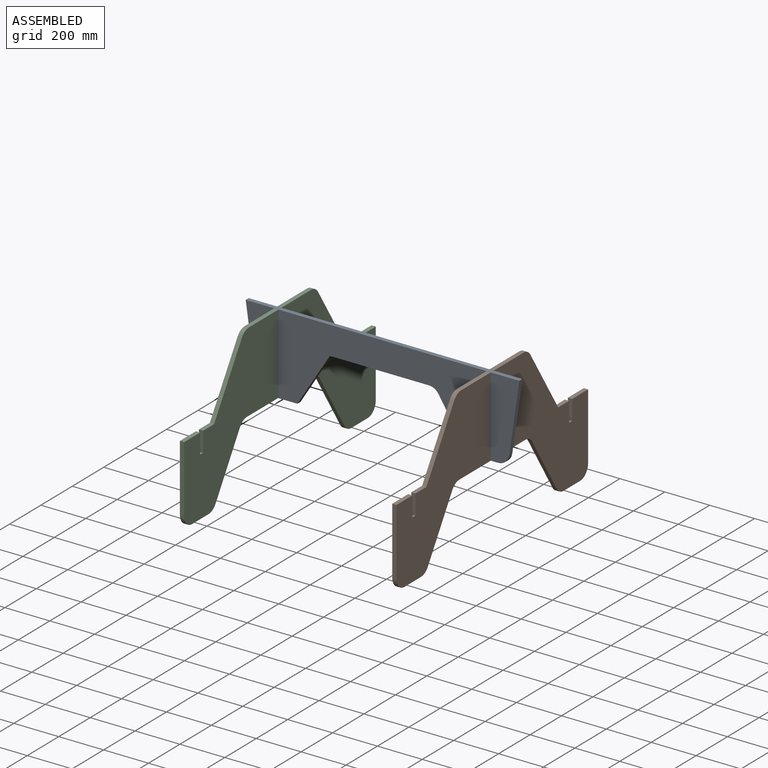
[diagram: assembled view]
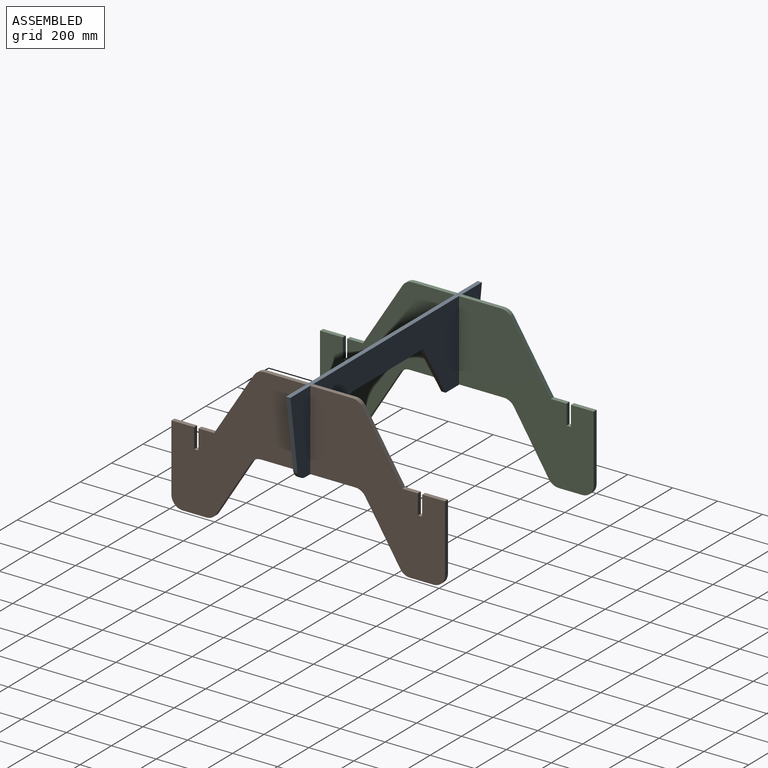
[diagram: assembled view, second angle]
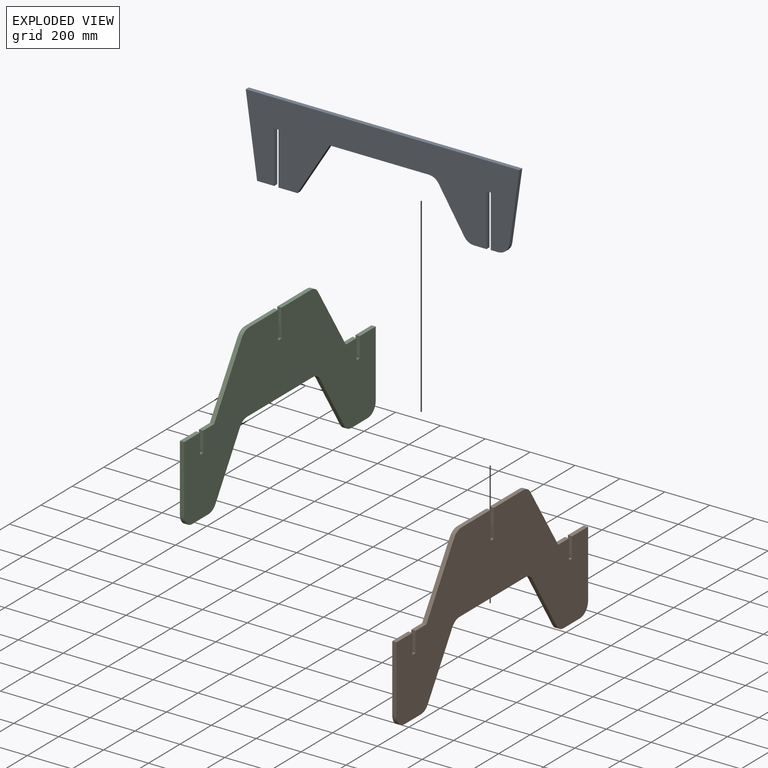
[diagram: exploded view]
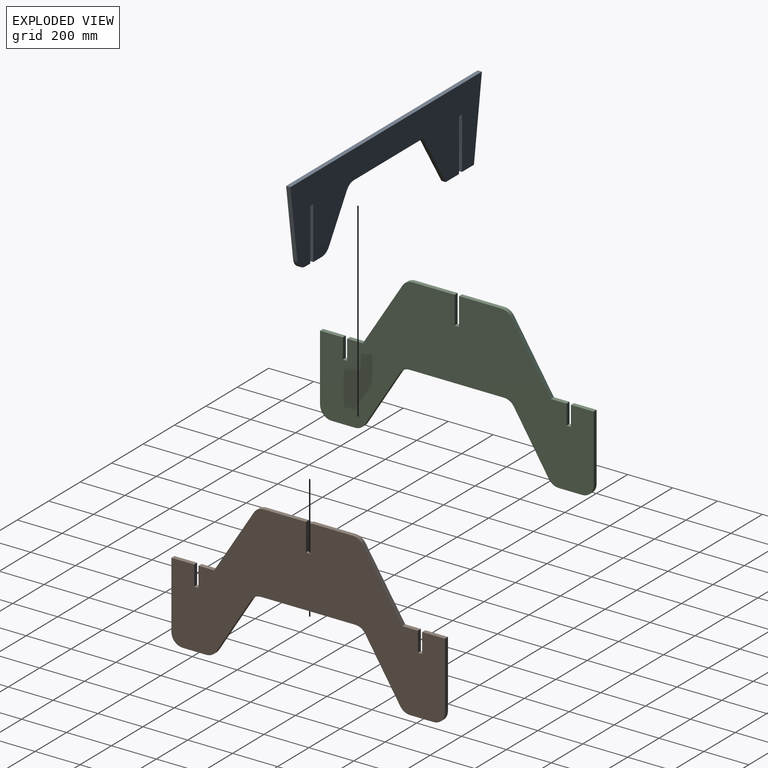
[diagram: exploded view, second angle]
ASSEMBLY  parts=3 mates=2
PART A: 21 faces, bbox 1219.2x19.1x356.9 mm
  f0: plane 19.05x19.05mm, normal (0,0,-1), area 362.9mm2, adj f1,f18,f19,f20
  f1: plane 233.1x19.05mm, normal (-1,0,0), area 4440.5mm2, adj f0,f2,f19,f20
  f2: plane 84.32x19.05mm, normal (0,0,-1), area 1606.2mm2, adj f1,f3,f19,f20
  f3: plane 230.9x144.28mm, normal (0.85,0,-0.53), area 5186.8mm2, adj f2,f4,f19,f20
  f4: plane 441.74x19.05mm, normal (0,0,-1), area 8415.2mm2, adj f3,f5,f19,f20
  f5: cylinder r=50.8mm len=43.08mm, axis (0,1,0), area 979.6mm2, adj f4,f6,f19,f20
  f6: plane 183.14x114.44mm, normal (-0.85,0,-0.53), area 4113.9mm2, adj f5,f7,f19,f20
  f7: cylinder r=50.8mm len=43.08mm, axis (0,1,0), area 979.6mm2, adj f6,f8,f19,f20
  f8: plane 56.16x19.05mm, normal (0,0,-1), area 1069.8mm2, adj f7,f9,f19,f20
  f9: plane 233.1x19.05mm, normal (1,0,0), area 4440.5mm2, adj f8,f10,f19,f20
  f10: plane 19.05x19.05mm, normal (0,0,-1), area 362.9mm2, adj f9,f11,f19,f20
  f11: plane 231.78x19.05mm, normal (-1,0,0), area 4415.3mm2, adj f10,f12,f19,f20
  f12: plane 32.14x19.05mm, normal (0,0,-1), area 612.3mm2, adj f11,f13,f19,f20
  f13: cylinder r=50.8mm len=50.29mm, axis (0,1,0), area 1382.8mm2, adj f12,f14,f19,f20
  f14: plane 311.98x44.57mm, normal (0.99,0,-0.14), area 6003.6mm2, adj f13,f15,f19,f20
  f15: plane 1219.2x19.05mm, normal (0,0,1), area 23225.8mm2, adj f14,f16,f19,f20
  f16: plane 355.6x50.8mm, normal (-0.99,0,-0.14), area 6843mm2, adj f15,f17,f19,f20
  f17: plane 76.2x19.05mm, normal (0,0,-1), area 1451.6mm2, adj f16,f18,f19,f20
  f18: plane 231.78x19.05mm, normal (1,0,0), area 4415.3mm2, adj f0,f17,f19,f20
  f19: plane 1219.2x356.92mm, normal (0,-1,0), area 265667.9mm2, adj f0,f1,f2,f3,f4,f5,f6,f7
  f20: plane 1219.2x356.92mm, normal (0,1,0), area 265667.9mm2, adj f0,f1,f2,f3,f4,f5,f6,f7
PART B: 34 faces, bbox 19.1x1219.2x654.1 mm
  f0: plane 188.95x19.05mm, normal (0,0,1), area 3599.5mm2, adj f1,f31,f32,f33
  f1: cylinder r=50.8mm len=42.97mm, axis (-1,0,0), area 975.6mm2, adj f0,f2,f32,f33
  f2: plane 281.17x177.34mm, normal (0,-0.85,0.53), area 6332.6mm2, adj f1,f3,f32,f33
  f3: plane 69.85x19.05mm, normal (0,0,1), area 1330.6mm2, adj f2,f4,f32,f33
  f4: plane 88.9x19.05mm, normal (0,-1,0), area 1693.5mm2, adj f3,f5,f32,f33
  f5: plane 19.05x19.05mm, normal (0,0,1), area 362.9mm2, adj f4,f6,f32,f33
  f6: plane 88.9x19.05mm, normal (0,1,0), area 1693.5mm2, adj f5,f7,f32,f33
  f7: plane 101.6x19.05mm, normal (0,0,1), area 1935.5mm2, adj f6,f8,f32,f33
  f8: plane 298.45x19.05mm, normal (0,-1,0), area 5685.5mm2, adj f7,f9,f32,f33
  f9: cylinder r=50.8mm len=50.8mm, axis (-1,0,0), area 1520.1mm2, adj f8,f10,f32,f33
  f10: plane 105.19x19.05mm, normal (0,0,-1), area 2003.9mm2, adj f9,f11,f32,f33
  f11: cylinder r=50.8mm len=43.08mm, axis (-1,0,0), area 979.6mm2, adj f10,f12,f32,f33
  f12: plane 250.75x156.69mm, normal (0,0.85,-0.53), area 5632.8mm2, adj f11,f13,f32,f33
  f13: cylinder r=50.8mm len=43.08mm, axis (-1,0,0), area 979.6mm2, adj f12,f14,f32,f33
  f14: plane 421.52x19.05mm, normal (0,0,-1), area 8029.9mm2, adj f13,f15,f32,f33
  f15: cylinder r=50.8mm len=43.08mm, axis (-1,0,0), area 979.6mm2, adj f14,f16,f32,f33
  f16: plane 250.75x156.69mm, normal (0,-0.85,-0.53), area 5632.8mm2, adj f15,f17,f32,f33
  f17: cylinder r=50.8mm len=43.08mm, axis (-1,0,0), area 979.6mm2, adj f16,f18,f32,f33
  f18: plane 105.19x19.05mm, normal (0,0,-1), area 2003.9mm2, adj f17,f19,f32,f33
  f19: cylinder r=50.8mm len=50.8mm, axis (-1,0,0), area 1520.1mm2, adj f18,f20,f32,f33
  f20: plane 298.45x19.05mm, normal (0,1,0), area 5685.5mm2, adj f19,f21,f32,f33
  f21: plane 101.6x19.05mm, normal (0,0,1), area 1935.5mm2, adj f20,f22,f32,f33
  f22: plane 88.9x19.05mm, normal (0,-1,0), area 1693.5mm2, adj f21,f23,f32,f33
  f23: plane 19.05x19.05mm, normal (0,0,1), area 362.9mm2, adj f22,f24,f32,f33
  f24: plane 88.9x19.05mm, normal (0,1,0), area 1693.5mm2, adj f23,f25,f32,f33
  f25: plane 69.85x19.05mm, normal (0,0,1), area 1330.6mm2, adj f24,f26,f32,f33
  f26: plane 281.17x177.34mm, normal (0,0.85,0.53), area 6332.6mm2, adj f25,f27,f32,f33
  f27: cylinder r=50.8mm len=42.97mm, axis (-1,0,0), area 975.6mm2, adj f26,f28,f32,f33
  f28: plane 188.95x19.05mm, normal (0,0,1), area 3599.5mm2, adj f27,f29,f32,f33
  f29: plane 123.83x19.05mm, normal (0,-1,0), area 2358.9mm2, adj f28,f30,f32,f33
  f30: plane 19.68x19.05mm, normal (0,0,1), area 375mm2, adj f29,f31,f32,f33
  f31: plane 123.83x19.05mm, normal (0,1,0), area 2358.9mm2, adj f0,f30,f32,f33
  f32: plane 1219.2x654.11mm, normal (1,0,0), area 417220mm2, adj f0,f1,f2,f3,f4,f5,f6,f7
  f33: plane 1219.2x654.11mm, normal (-1,0,0), area 417220mm2, adj f0,f1,f2,f3,f4,f5,f6,f7
PART C: same geometry as B
PLACE A t=(-475.78,-78.48,472.78)mm
PLACE B t=(-2.71,-78.48,472.78)mm
PLACE C t=(-948.86,-78.48,472.78)mm
MATE fastened B.f30 <-> A.f10  axis (0,0,1) through (-2.71,-78.48,348.95)mm
MATE fastened C.f30 <-> A.f0  axis (0,0,1) through (-948.86,-78.48,348.95)mm
